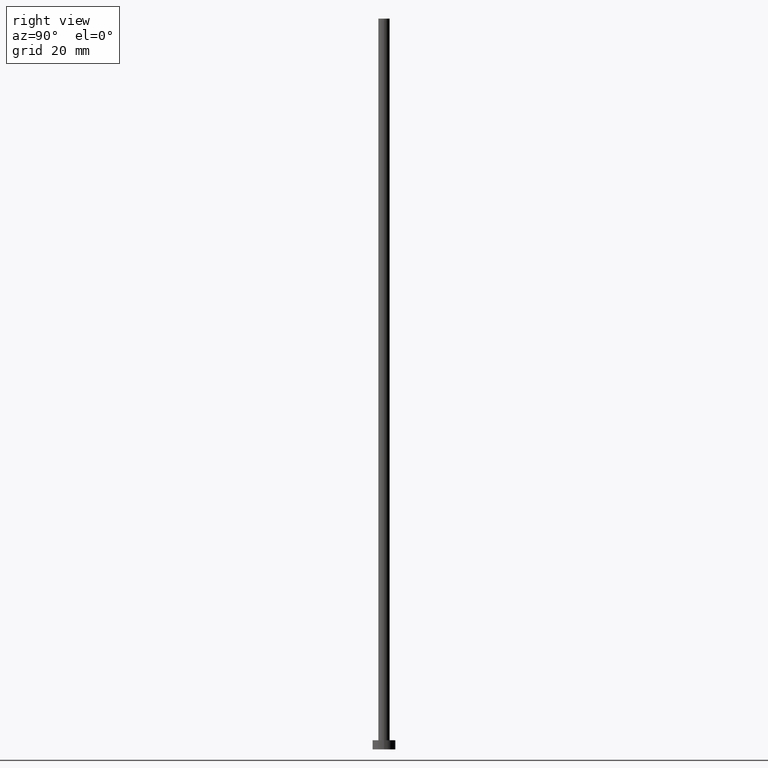
[diagram: clean part render]
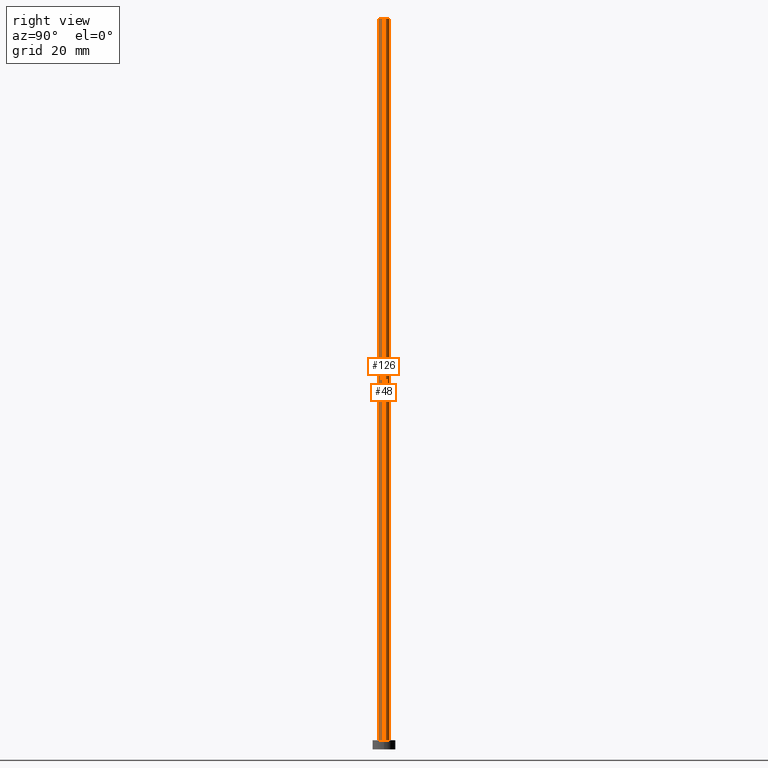
[diagram: same view with one multi-face feature highlighted, each face labeled with its STEP entity id]
A machine part, right view. The highlighted faces form ONE feature: a constant-radius fillet chain: 2 tangent blend faces with common blend radius 1.25 mm. The faces share edges in the B-rep.
Their STEP definitions:
[1] entity #126 (Cylinder):
#1 = CARTESIAN_POINT ( 'NONE',  ( 0.000000000000000000, 0.000000000000000000, 160.0000000000000000 ) ) ;
#3 = VERTEX_POINT ( 'NONE', #157 ) ;
#5 = ORIENTED_EDGE ( 'NONE', *, *, #137, .T. ) ;
#30 = DIRECTION ( 'NONE',  ( -0.000000000000000000, -0.000000000000000000, -1.000000000000000000 ) ) ;
#32 = VECTOR ( 'NONE', #173, 1000.000000000000000 ) ;
#33 = EDGE_CURVE ( 'NONE', #3, #41, #120, .T. ) ;
#37 = VECTOR ( 'NONE', #83, 1000.000000000000000 ) ;
#41 = VERTEX_POINT ( 'NONE', #55 ) ;
#47 = CIRCLE ( 'NONE', #188, 1.250000000000000000 ) ;
#55 = CARTESIAN_POINT ( 'NONE',  ( 1.250000000000000000, 1.530808498934191571E-16, 2.000000000000000000 ) ) ;
#57 = CARTESIAN_POINT ( 'NONE',  ( 1.250000000000000000, 1.530808498934191571E-16, 160.0000000000000000 ) ) ;
#59 = CARTESIAN_POINT ( 'NONE',  ( -1.250000000000000000, 0.000000000000000000, 160.0000000000000000 ) ) ;
#70 = CIRCLE ( 'NONE', #139, 1.250000000000000000 ) ;
#73 = AXIS2_PLACEMENT_3D ( 'NONE', #1, #30, #92 ) ;
#74 = FACE_OUTER_BOUND ( 'NONE', #84, .T. ) ;
#82 = CARTESIAN_POINT ( 'NONE',  ( 0.000000000000000000, 0.000000000000000000, 160.0000000000000000 ) ) ;
#83 = DIRECTION ( 'NONE',  ( -0.000000000000000000, -0.000000000000000000, -1.000000000000000000 ) ) ;
#84 = EDGE_LOOP ( 'NONE', ( #235, #175, #238, #5 ) ) ;
#88 = EDGE_CURVE ( 'NONE', #167, #3, #47, .T. ) ;
#92 = DIRECTION ( 'NONE',  ( -1.000000000000000000, 0.000000000000000000, 0.000000000000000000 ) ) ;
#120 = LINE ( 'NONE', #57, #32 ) ;
#126 = ADVANCED_FACE ( 'NONE', ( #74 ), #133, .T. ) ;
#127 = LINE ( 'NONE', #246, #37 ) ;
#133 = CYLINDRICAL_SURFACE ( 'NONE', #73, 1.250000000000000000 ) ;
#137 = EDGE_CURVE ( 'NONE', #232, #41, #70, .T. ) ;
#139 = AXIS2_PLACEMENT_3D ( 'NONE', #165, #153, #233 ) ;
#145 = DIRECTION ( 'NONE',  ( 0.000000000000000000, 0.000000000000000000, 1.000000000000000000 ) ) ;
#153 = DIRECTION ( 'NONE',  ( 0.000000000000000000, 0.000000000000000000, 1.000000000000000000 ) ) ;
#157 = CARTESIAN_POINT ( 'NONE',  ( 1.250000000000000000, 1.530808498934191571E-16, 160.0000000000000000 ) ) ;
#162 = CARTESIAN_POINT ( 'NONE',  ( -1.250000000000000000, 0.000000000000000000, 2.000000000000000000 ) ) ;
#165 = CARTESIAN_POINT ( 'NONE',  ( 0.000000000000000000, 0.000000000000000000, 2.000000000000000000 ) ) ;
#167 = VERTEX_POINT ( 'NONE', #59 ) ;
#173 = DIRECTION ( 'NONE',  ( -0.000000000000000000, -0.000000000000000000, -1.000000000000000000 ) ) ;
#175 = ORIENTED_EDGE ( 'NONE', *, *, #88, .F. ) ;
#188 = AXIS2_PLACEMENT_3D ( 'NONE', #82, #145, #209 ) ;
#194 = EDGE_CURVE ( 'NONE', #167, #232, #127, .T. ) ;
#209 = DIRECTION ( 'NONE',  ( 1.000000000000000000, 0.000000000000000000, 0.000000000000000000 ) ) ;
#232 = VERTEX_POINT ( 'NONE', #162 ) ;
#233 = DIRECTION ( 'NONE',  ( 1.000000000000000000, 0.000000000000000000, 0.000000000000000000 ) ) ;
#235 = ORIENTED_EDGE ( 'NONE', *, *, #33, .F. ) ;
#238 = ORIENTED_EDGE ( 'NONE', *, *, #194, .T. ) ;
#246 = CARTESIAN_POINT ( 'NONE',  ( -1.250000000000000000, 0.000000000000000000, 160.0000000000000000 ) ) ;
[2] entity #48 (Cylinder):
#3 = VERTEX_POINT ( 'NONE', #157 ) ;
#32 = VECTOR ( 'NONE', #173, 1000.000000000000000 ) ;
#33 = EDGE_CURVE ( 'NONE', #3, #41, #120, .T. ) ;
#35 = DIRECTION ( 'NONE',  ( -1.000000000000000000, 0.000000000000000000, 0.000000000000000000 ) ) ;
#37 = VECTOR ( 'NONE', #83, 1000.000000000000000 ) ;
#38 = EDGE_CURVE ( 'NONE', #41, #232, #195, .T. ) ;
#41 = VERTEX_POINT ( 'NONE', #55 ) ;
#48 = ADVANCED_FACE ( 'NONE', ( #254 ), #178, .T. ) ;
#55 = CARTESIAN_POINT ( 'NONE',  ( 1.250000000000000000, 1.530808498934191571E-16, 2.000000000000000000 ) ) ;
#57 = CARTESIAN_POINT ( 'NONE',  ( 1.250000000000000000, 1.530808498934191571E-16, 160.0000000000000000 ) ) ;
#59 = CARTESIAN_POINT ( 'NONE',  ( -1.250000000000000000, 0.000000000000000000, 160.0000000000000000 ) ) ;
#63 = ORIENTED_EDGE ( 'NONE', *, *, #149, .F. ) ;
#67 = DIRECTION ( 'NONE',  ( 0.000000000000000000, 0.000000000000000000, 1.000000000000000000 ) ) ;
#83 = DIRECTION ( 'NONE',  ( -0.000000000000000000, -0.000000000000000000, -1.000000000000000000 ) ) ;
#87 = CIRCLE ( 'NONE', #224, 1.250000000000000000 ) ;
#89 = EDGE_LOOP ( 'NONE', ( #63, #247, #146, #199 ) ) ;
#95 = CARTESIAN_POINT ( 'NONE',  ( 0.000000000000000000, 0.000000000000000000, 160.0000000000000000 ) ) ;
#120 = LINE ( 'NONE', #57, #32 ) ;
#123 = DIRECTION ( 'NONE',  ( 1.000000000000000000, 0.000000000000000000, 0.000000000000000000 ) ) ;
#127 = LINE ( 'NONE', #246, #37 ) ;
#146 = ORIENTED_EDGE ( 'NONE', *, *, #38, .T. ) ;
#149 = EDGE_CURVE ( 'NONE', #3, #167, #87, .T. ) ;
#157 = CARTESIAN_POINT ( 'NONE',  ( 1.250000000000000000, 1.530808498934191571E-16, 160.0000000000000000 ) ) ;
#162 = CARTESIAN_POINT ( 'NONE',  ( -1.250000000000000000, 0.000000000000000000, 2.000000000000000000 ) ) ;
#167 = VERTEX_POINT ( 'NONE', #59 ) ;
#172 = DIRECTION ( 'NONE',  ( 0.000000000000000000, 0.000000000000000000, 1.000000000000000000 ) ) ;
#173 = DIRECTION ( 'NONE',  ( -0.000000000000000000, -0.000000000000000000, -1.000000000000000000 ) ) ;
#178 = CYLINDRICAL_SURFACE ( 'NONE', #179, 1.250000000000000000 ) ;
#179 = AXIS2_PLACEMENT_3D ( 'NONE', #243, #203, #35 ) ;
#194 = EDGE_CURVE ( 'NONE', #167, #232, #127, .T. ) ;
#195 = CIRCLE ( 'NONE', #206, 1.250000000000000000 ) ;
#199 = ORIENTED_EDGE ( 'NONE', *, *, #194, .F. ) ;
#203 = DIRECTION ( 'NONE',  ( -0.000000000000000000, -0.000000000000000000, -1.000000000000000000 ) ) ;
#206 = AXIS2_PLACEMENT_3D ( 'NONE', #218, #67, #123 ) ;
#218 = CARTESIAN_POINT ( 'NONE',  ( 0.000000000000000000, 0.000000000000000000, 2.000000000000000000 ) ) ;
#224 = AXIS2_PLACEMENT_3D ( 'NONE', #95, #172, #226 ) ;
#226 = DIRECTION ( 'NONE',  ( 1.000000000000000000, 0.000000000000000000, 0.000000000000000000 ) ) ;
#232 = VERTEX_POINT ( 'NONE', #162 ) ;
#243 = CARTESIAN_POINT ( 'NONE',  ( 0.000000000000000000, 0.000000000000000000, 160.0000000000000000 ) ) ;
#246 = CARTESIAN_POINT ( 'NONE',  ( -1.250000000000000000, 0.000000000000000000, 160.0000000000000000 ) ) ;
#247 = ORIENTED_EDGE ( 'NONE', *, *, #33, .T. ) ;
#254 = FACE_OUTER_BOUND ( 'NONE', #89, .T. ) ;